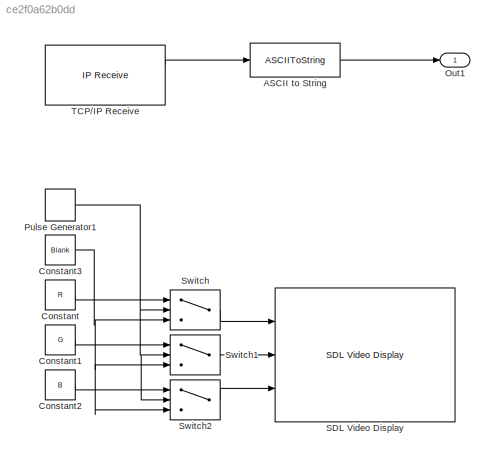
MODEL slx_ce2f0a62b0dd
KIND model
CONFIG AbsTol = auto
CONFIG EnableMultiTasking = on
CONFIG FixedStep = auto
CONFIG MaxStep = auto
CONFIG MinStep = auto
CONFIG RelTol = 1e-3
CONFIG SampleTimeConstraint = Unconstrained
CONFIG Solver = FixedStepAuto
CONFIG SolverName = FixedStepAuto
CONFIG StartTime = 0.0
CONFIG StopTime = 10.0
BLOCK [ASCIIToString] ASCII to String
BLOCK [Constant] Constant
  Value = R
  VectorParams1D = off
BLOCK [Constant] Constant1
  Value = G
  VectorParams1D = off
BLOCK [Constant] Constant2
  Value = B
  VectorParams1D = off
BLOCK [Constant] Constant3
  Value = Blank
  VectorParams1D = off
BLOCK [Outport] Out1
  IconDisplay = Port number
BLOCK [DiscretePulseGenerator] Pulse Generator1
  Period = 10
  Ports = [0, 1]
  PulseType = Time based
  PulseWidth = 5
  SampleTime = 0.1
BLOCK [Reference] SDL Video Display  REF=embdlinuxlib/SDL Video Display
  Ports = [3]
  SourceBlock = embdlinuxlib/SDL Video Display
  SourceProductBaseCode = RASPPI
  SourceProductName = Simulink Support Package for Raspberry Pi Hardware
  SourceType = SDL Video Display
BLOCK [Switch] Switch
  Criteria = u2 > Threshold
  InputSameDT = off
  SaturateOnIntegerOverflow = off
BLOCK [Switch] Switch1
  Criteria = u2 > Threshold
  InputSameDT = off
  SaturateOnIntegerOverflow = off
BLOCK [Switch] Switch2
  Criteria = u2 > Threshold
  InputSameDT = off
  SaturateOnIntegerOverflow = off
BLOCK [Reference] TCP//IP Receive  REF=raspberrypilib/TCP//IP Receive
  Ports = [0, 2]
  SourceBlock = raspberrypilib/TCP//IP Receive
  SourceProductBaseCode = RASPPI
  SourceProductName = Simulink Support Package for Raspberry Pi Hardware
  SourceType = raspi.internal.TCPReceive
LINE ASCII to String:1 -> Out1:1
LINE Constant1:1 -> Switch1:1
LINE Constant2:1 -> Switch2:1
NET Constant3:1 -> Switch1:3, Switch2:3, Switch:3
LINE Constant:1 -> Switch:1
NET Pulse Generator1:1 -> Switch1:2, Switch2:2, Switch:2
LINE Switch1:1 -> SDL Video Display:2
LINE Switch2:1 -> SDL Video Display:3
LINE Switch:1 -> SDL Video Display:1
LINE TCP//IP Receive:1 -> ASCII to String:1
note: NET lines group one-source signal fan-out (src -> all destinations, sorted); 1:1 wires keep LINE
